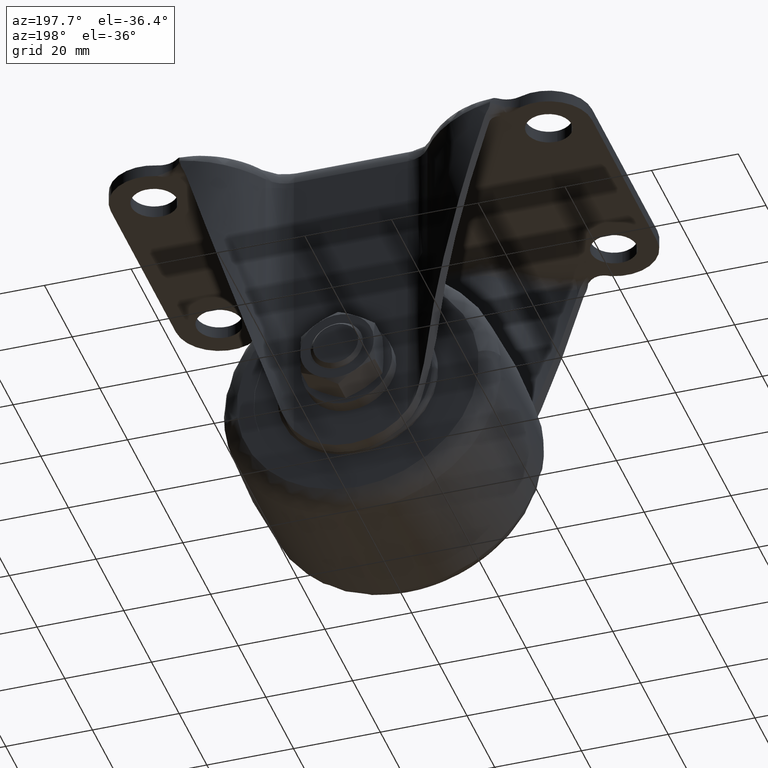
[diagram: clean part render]
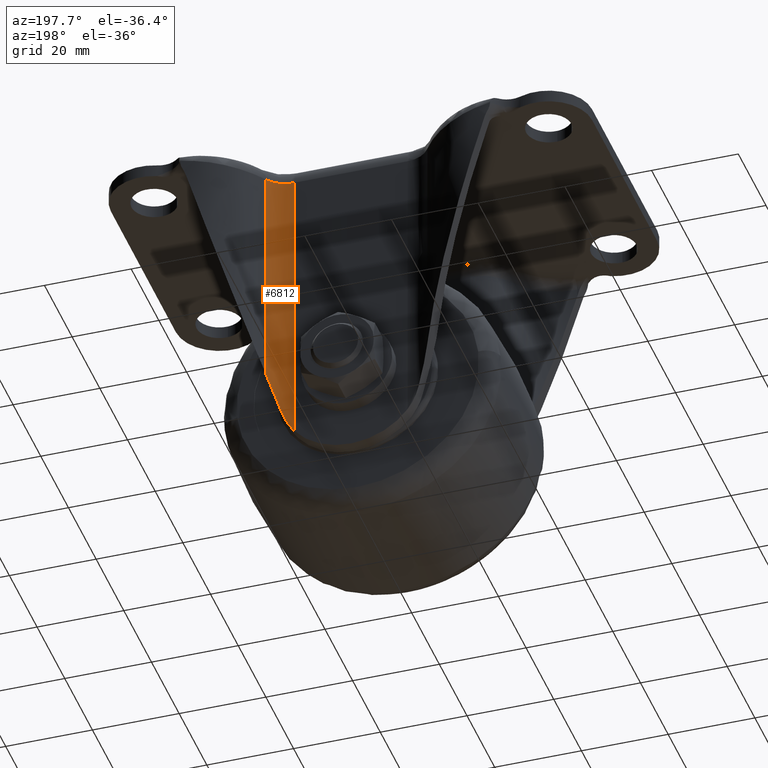
[diagram: same view with one face highlighted and labeled with its STEP entity id]
A machine part, auxiliary view. The second image highlights one B-rep face of the part: STEP entity #6812.
In plain terms, the highlighted face is a freeform B-spline surface patch.
Its self-contained STEP definition (entity closure, byte-faithful):
#5334=CARTESIAN_POINT('',(18.622024761987252,27.051020408163250,-5.0));
#5335=VERTEX_POINT('',#5334);
#5420=CARTESIAN_POINT('',(13.112529342704841,24.0,-5.0));
#5421=VERTEX_POINT('',#5420);
#5451=CARTESIAN_POINT('',(13.112529342704841,24.0,-5.0));
#5452=CARTESIAN_POINT('',(16.712066349969341,24.000000000000004,-5.0));
#5453=CARTESIAN_POINT('',(18.622024761987230,27.051020408163261,-5.0));
#5461=(BOUNDED_CURVE()B_SPLINE_CURVE(2,(#5451,#5452,#5453),.UNSPECIFIED.,.F.,.U.)CURVE()GEOMETRIC_REPRESENTATION_ITEM()QUASI_UNIFORM_CURVE()RATIONAL_B_SPLINE_CURVE((1.0,0.874817765279706,1.0))REPRESENTATION_ITEM(''));
#5462=EDGE_CURVE('',#5421,#5335,#5461,.T.);
#6732=CARTESIAN_POINT('',(18.622024761987252,27.051020408163250,-58.056322656207499));
#6733=VERTEX_POINT('',#6732);
#6747=CARTESIAN_POINT('',(18.622024761987252,27.051020408163250,-58.056322656207499));
#6748=CARTESIAN_POINT('',(18.622024761987252,27.051020408163250,-5.0));
#6749=QUASI_UNIFORM_CURVE('',1,(#6747,#6748),.UNSPECIFIED.,.F.,.U.);
#6750=EDGE_CURVE('',#6733,#5335,#6749,.T.);
#6755=CARTESIAN_POINT('',(18.713118885574762,27.201000640755431,-74.305756790811003));
#6756=CARTESIAN_POINT('',(18.713118885574762,27.201000640755431,-3.267356080229718));
#6757=CARTESIAN_POINT('',(16.720113614458445,23.817549095358761,-74.305756790811003));
#6758=CARTESIAN_POINT('',(16.720113614458445,23.817549095358761,-3.267356080229718));
#6759=CARTESIAN_POINT('',(12.797909146006834,24.007618762593356,-74.305756790811003));
#6760=CARTESIAN_POINT('',(12.797909146006834,24.007618762593356,-3.267356080229718));
#6768=(BOUNDED_SURFACE()B_SPLINE_SURFACE(1,2,((#6755,#6757,#6759),(#6756,#6758,#6760)),.UNSPECIFIED.,.F.,.F.,.U.)B_SPLINE_SURFACE_WITH_KNOTS((2,2),(3,3),(0.0,71.038400710581286),(0.0,7.243936071115483),.UNSPECIFIED.)GEOMETRIC_REPRESENTATION_ITEM()RATIONAL_B_SPLINE_SURFACE(((1.0,0.852347922739682,0.991643693684412),(1.0,0.852347922739682,0.991643693684412)))REPRESENTATION_ITEM('')SURFACE());
#6769=CARTESIAN_POINT('',(13.112529342704841,24.0,-72.615372478840001));
#6770=VERTEX_POINT('',#6769);
#6771=CARTESIAN_POINT('',(13.112529342704841,24.0,-72.615372478840001));
#6772=CARTESIAN_POINT('',(13.112529342704841,24.0,-5.0));
#6773=QUASI_UNIFORM_CURVE('',1,(#6771,#6772),.UNSPECIFIED.,.F.,.U.);
#6774=EDGE_CURVE('',#6770,#5421,#6773,.T.);
#6775=ORIENTED_EDGE('',*,*,#6774,.T.);
#6776=ORIENTED_EDGE('',*,*,#5462,.T.);
#6777=ORIENTED_EDGE('',*,*,#6750,.F.);
#6778=CARTESIAN_POINT('',(15.788895217503899,24.576566392352198,-67.391547508985795));
#6779=VERTEX_POINT('',#6778);
#6780=CARTESIAN_POINT('',(15.788895217503830,24.576566392352198,-67.391547508986008));
#6781=CARTESIAN_POINT('',(17.579453785657428,25.385588686861915,-61.491617208117674));
#6782=CARTESIAN_POINT('',(18.622024761987230,27.051020408163250,-58.056322656207499));
#6790=(BOUNDED_CURVE()B_SPLINE_CURVE(2,(#6780,#6781,#6782),.UNSPECIFIED.,.F.,.U.)CURVE()GEOMETRIC_REPRESENTATION_ITEM()QUASI_UNIFORM_CURVE()RATIONAL_B_SPLINE_CURVE((1.0,0.957222480701855,1.0))REPRESENTATION_ITEM(''));
#6791=EDGE_CURVE('',#6779,#6733,#6790,.T.);
#6792=ORIENTED_EDGE('',*,*,#6791,.F.);
#6793=CARTESIAN_POINT('',(15.788895217503921,24.576566392352241,-67.391547508985795));
#6794=CARTESIAN_POINT('',(15.646953233609141,24.512433204228579,-67.859249502453579));
#6795=CARTESIAN_POINT('',(15.484414799489990,24.445071643869859,-68.320245737613007));
#6796=CARTESIAN_POINT('',(15.209087557198330,24.346631560053108,-69.002445114614332));
#6797=CARTESIAN_POINT('',(15.112047445131330,24.314258676903069,-69.228293221522179));
#6798=CARTESIAN_POINT('',(14.958405722976950,24.267375554527309,-69.564811541396352));
#6799=CARTESIAN_POINT('',(14.905783690044361,24.252011724632869,-69.676730945826506));
#6800=CARTESIAN_POINT('',(14.798167591160849,24.222122784036038,-69.899086101154978));
#6801=CARTESIAN_POINT('',(14.743175818800189,24.207596340097211,-70.009526429590522));
#6802=CARTESIAN_POINT('',(14.462324937555429,24.137478499943239,-70.558086240810781));
#6803=CARTESIAN_POINT('',(14.218833545445440,24.089377615337810,-70.985305107668395));
#6804=CARTESIAN_POINT('',(13.694206559821801,24.020675964051460,-71.817209602966315));
#6805=CARTESIAN_POINT('',(13.413075312557501,24.0,-72.221893207268636));
#6806=CARTESIAN_POINT('',(13.112529342704800,24.0,-72.615372478839987));
#6807=B_SPLINE_CURVE_WITH_KNOTS('',3,(#6793,#6794,#6795,#6796,#6797,#6798,#6799,#6800,#6801,#6802,#6803,#6804,#6805,#6806),.UNSPECIFIED.,.F.,.U.,(4,2,2,2,2,2,4),(0.0,0.250000000000006,0.375000000000008,0.437500000000010,0.500000000000012,0.750000000000006,1.0),.UNSPECIFIED.);
#6808=EDGE_CURVE('',#6779,#6770,#6807,.T.);
#6809=ORIENTED_EDGE('',*,*,#6808,.T.);
#6810=EDGE_LOOP('',(#6775,#6776,#6777,#6792,#6809));
#6811=FACE_OUTER_BOUND('',#6810,.T.);
#6812=ADVANCED_FACE('',(#6811),#6768,.F.);